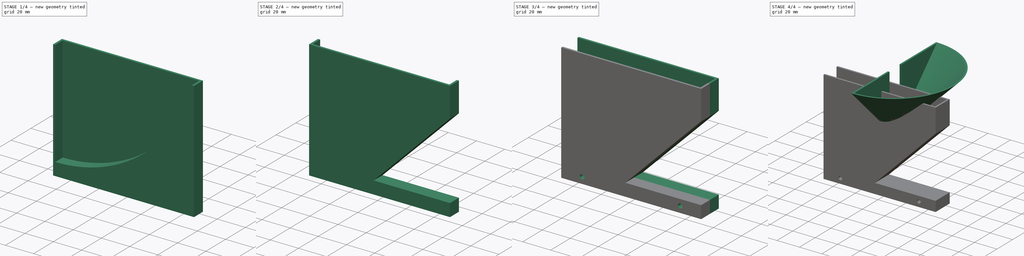
[diagram: build sequence overview — one tinted view per stage of 4, left to right]
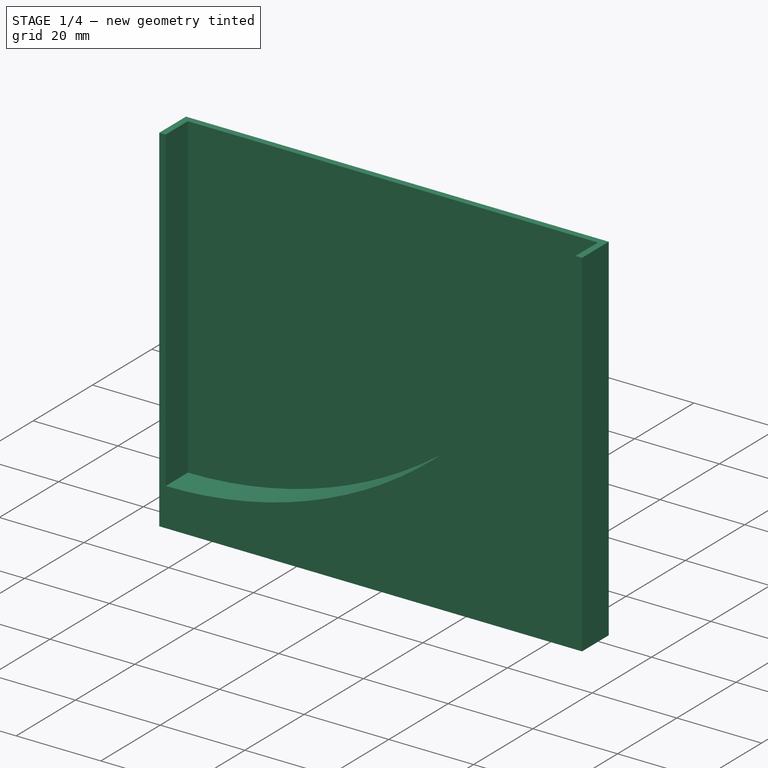
[diagram: stage 1 of 4 — iso view after this stage's code; geometry added in this stage tinted green]
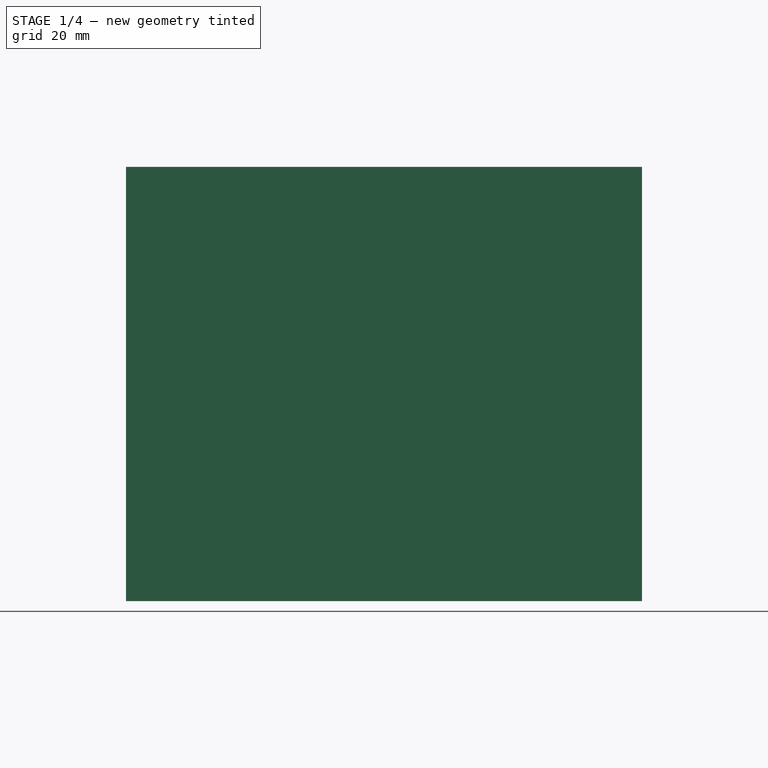
[diagram: stage 1 of 4 — front view after this stage's code; geometry added in this stage tinted green]
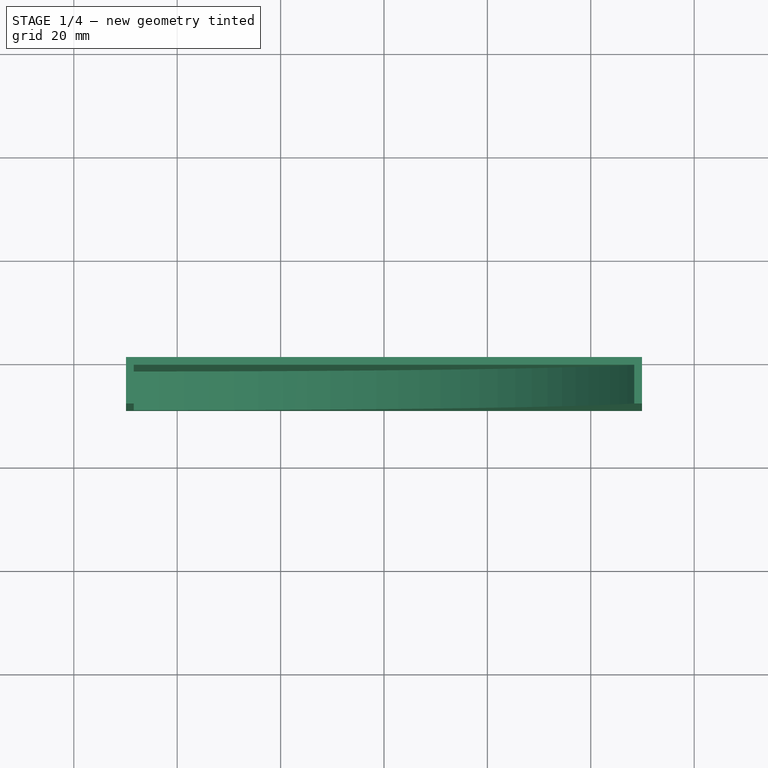
[diagram: stage 1 of 4 — top view after this stage's code; geometry added in this stage tinted green]
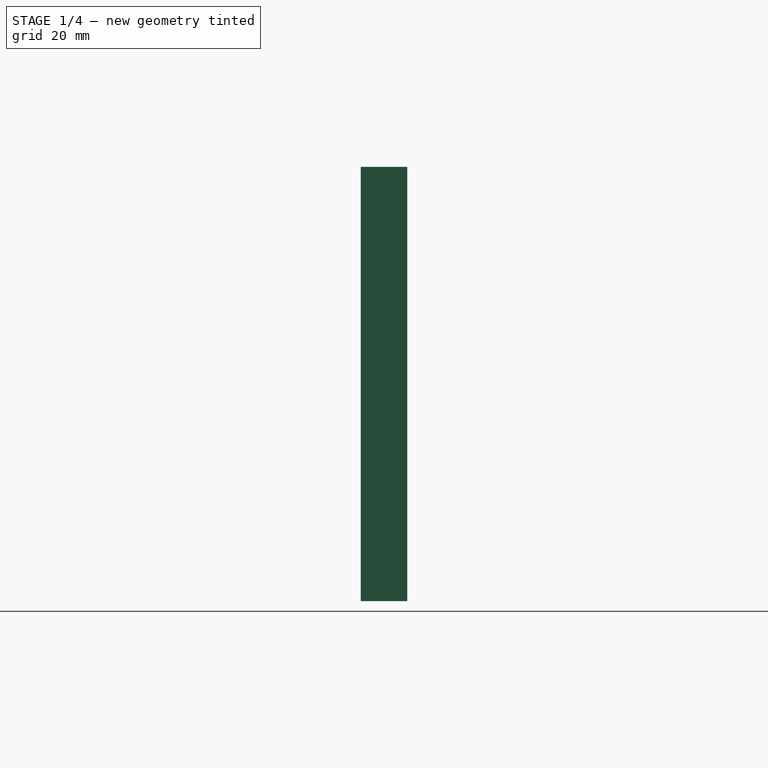
[diagram: stage 1 of 4 — right view after this stage's code; geometry added in this stage tinted green]
FCSTD DOCUMENT  (FreeCAD 0.16R5239 (Git))
Label: bowl3
License: All rights reserved
LicenseURL: http://en.wikipedia.org/wiki/All_rights_reserved
objects: Sketcher::SketchObject×7, PartDesign::Pocket×4, PartDesign::Pad×2, Part::Mirroring×1, Part::MultiFuse×1, PartDesign::Revolution×1, App::DocumentObjectGroup×1, Part::Feature×1
note: 24 computed .brp shape members not serialized (recipe doc carries the construction recipe); baked Part::Feature solids carry a one-line shape summary decoded from their .brp

FEATURE [Sketcher::SketchObject] Sketch
  Placement = pos=(0,0,0) rot=(1,0,0;1.5708rad)
  sketch-geometry (4):
    g0: LineSegment StartX=-49.9125 StartY=42 StartZ=0 EndX=49.9125 EndY=42 EndZ=0
    g1: LineSegment StartX=49.9125 StartY=42 StartZ=0 EndX=49.9125 EndY=-42 EndZ=0
    g2: LineSegment StartX=49.9125 StartY=-42 StartZ=0 EndX=-49.9125 EndY=-42 EndZ=0
    g3: LineSegment StartX=-49.9125 StartY=-42 StartZ=0 EndX=-49.9125 EndY=42 EndZ=0
  constraints (12):
    c: Coincident(g0,g1)
    c: Coincident(g1,g2)
    c: Coincident(g2,g3)
    c: Coincident(g3,g0)
    c: Horizontal(g0)
    c: Horizontal(g2)
    c: Vertical(g1)
    c: Vertical(g3)
    c: DistanceY(g3) = 84
    c: DistanceX(g0) = 99.825
    c: Symmetric(g0,g0,g-2)
    c: Symmetric(g2,g0,g-1)
FEATURE [PartDesign::Pad] Pad
  Length = 9
  Length2 = 100
  Placement = pos=(0,0,0) rot=(1,0,0;1.5708rad)
  Sketch = -> Sketch
  Type = 0
FEATURE [Sketcher::SketchObject] Sketch001
  ExternalGeometry = -> [Pad]
  Placement = pos=(0,-9,0) rot=(1,0,0;1.5708rad)
  Support = -> Pad [Face6]
  sketch-geometry (3):
    g0: LineSegment StartX=-48.4125 StartY=-33 StartZ=0 EndX=-48.4125 EndY=42 EndZ=0
    g1: LineSegment StartX=-48.4125 StartY=42 StartZ=0 EndX=48.4121 EndY=42 EndZ=0
    g2: ArcOfCircle CenterX=-48.4125 CenterY=67 CenterZ=0 NormalX=0 NormalY=0 NormalZ=1 Radius=100 StartAngle=4.71239 EndAngle=6.03051
  constraints (10):
    c: Vertical(g0)
    c: Coincident(g0,g1)
    c: Horizontal(g1)
    c: Radius(g2) = 100
    c: DistanceX(g0,g-3) = -1.5
    c: PointOnObject(g0,g-4)
    c: Coincident(g2,g1)
    c: DistanceY(g-3,g0) = 9
    c: Coincident(g2,g0)
    c: PointOnObject(g2,g0)
FEATURE [PartDesign::Pocket] Pocket
  Length = 7.5
  Placement = pos=(0,0,0) rot=(1,0,0;1.5708rad)
  Sketch = -> Sketch001
  Type = 0
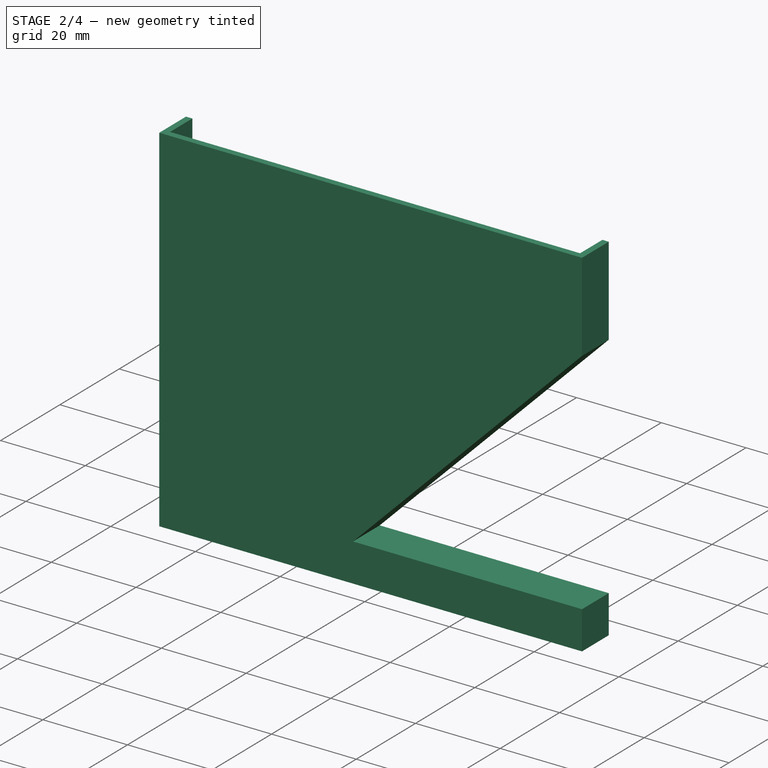
[diagram: stage 2 of 4 — iso view after this stage's code; geometry added in this stage tinted green]
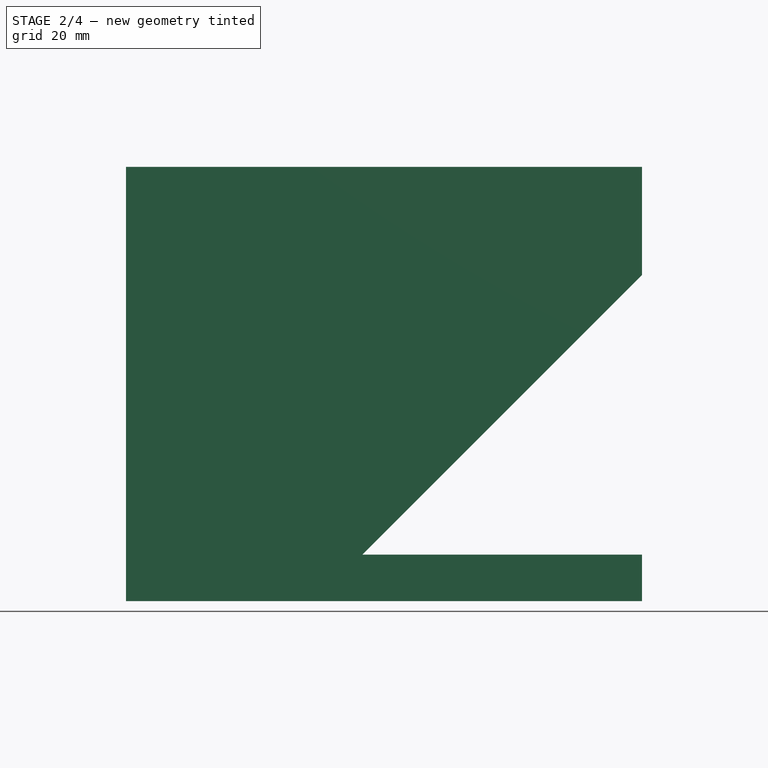
[diagram: stage 2 of 4 — front view after this stage's code; geometry added in this stage tinted green]
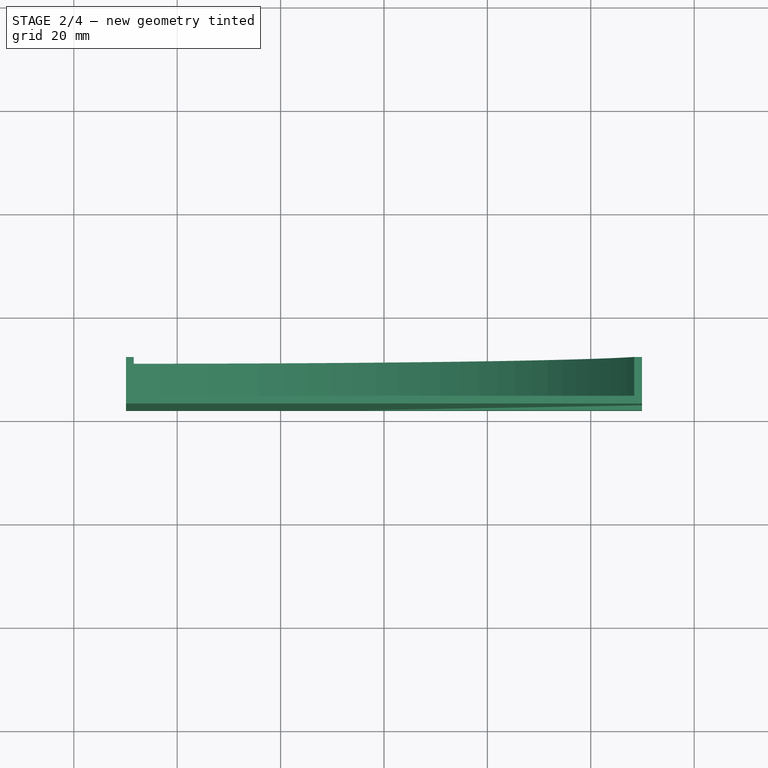
[diagram: stage 2 of 4 — top view after this stage's code; geometry added in this stage tinted green]
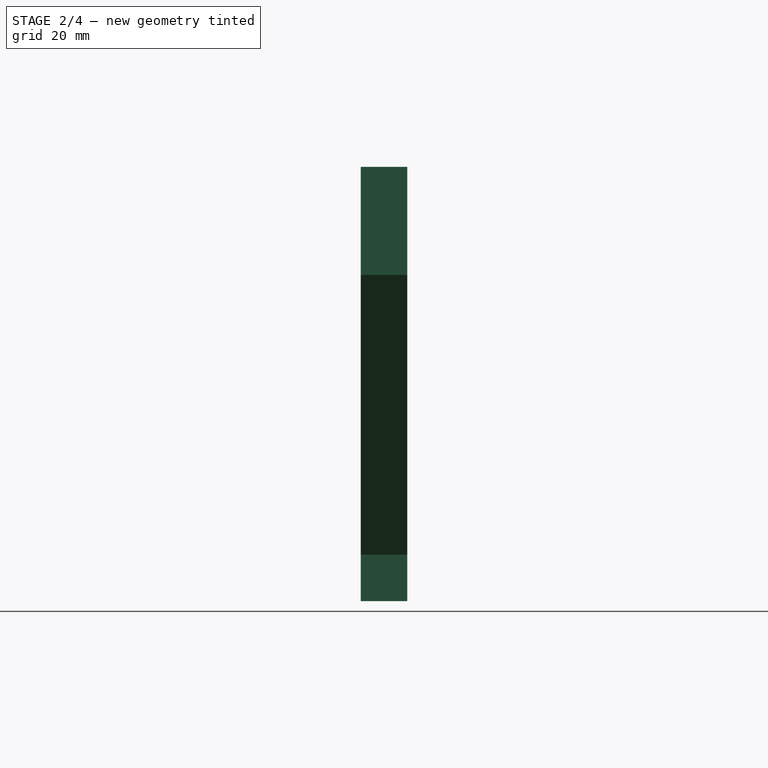
[diagram: stage 2 of 4 — right view after this stage's code; geometry added in this stage tinted green]
FEATURE [Sketcher::SketchObject] Sketch002
  ExternalGeometry = -> [Pocket]
  Placement = pos=(0,-9,0) rot=(1,0,0;1.5708rad)
  Support = -> Pocket [Face4]
  sketch-geometry (5):
    g0: LineSegment StartX=-4.16272 StartY=-33 StartZ=0 EndX=49.9125 EndY=-33 EndZ=0
    g1: LineSegment StartX=49.9125 StartY=-33 StartZ=0 EndX=49.9125 EndY=21.0752 EndZ=0
    g2: LineSegment StartX=49.9125 StartY=21.0752 StartZ=0 EndX=-4.16272 EndY=-33 EndZ=0
    g3: LineSegment [constr] StartX=-48.4125 StartY=67 StartZ=0 EndX=23.7124 EndY=-5.12489 EndZ=0
    g4: GeomPoint [constr] X=22.2982 Y=-3.71068 Z=0
  constraints (14):
    c: Horizontal(g0)
    c: Coincident(g0,g1)
    c: Vertical(g1)
    c: Coincident(g1,g2)
    c: Coincident(g2,g0)
    c: DistanceY(g0,g-3) = -9
    c: Angle(g0,g2) = 0.785398
    c: PointOnObject(g1,g-4)
    c: Coincident(g3,g-5)
    c: Angle(g-6,g3) = 0.785398
    c: PointOnObject(g3,g2)
    c: PointOnObject(g4,g-5)
    c: PointOnObject(g4,g3)
    c: Distance(g4,g3) = 2
FEATURE [PartDesign::Pocket] Pocket001
  Length = 9
  Placement = pos=(0,0,0) rot=(1,0,0;1.5708rad)
  Sketch = -> Sketch002
  Type = 0
FEATURE [Part::Mirroring] Part__Mirroring  label="Pocket001 (Mirror #1)"
  Base = (0,0,0)
  Normal = (0,1,0)
  Placement = pos=(0,-18,0) rot=(0,0,1;0rad)
  Source = -> Pocket001
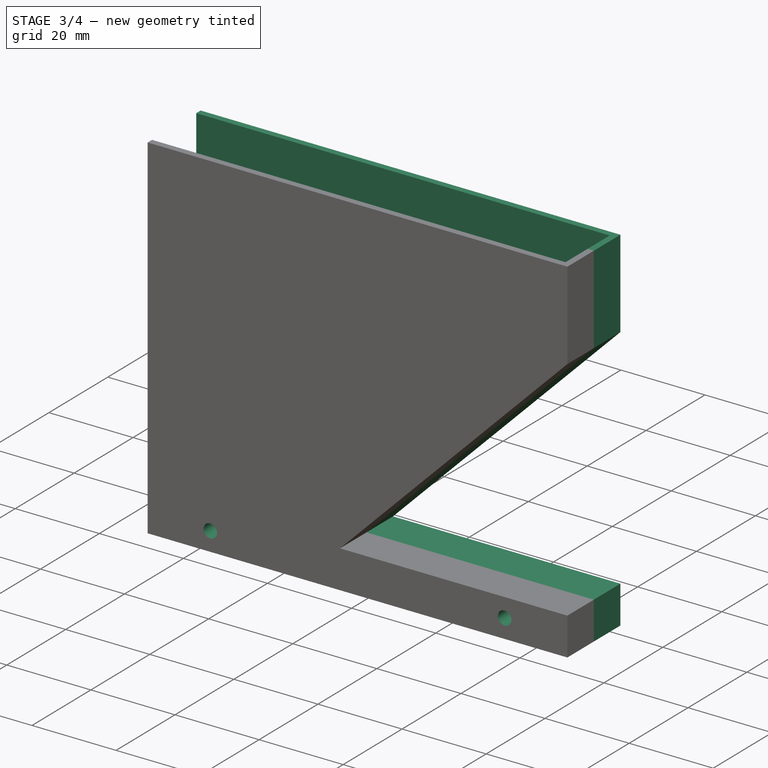
[diagram: stage 3 of 4 — iso view after this stage's code; geometry added in this stage tinted green]
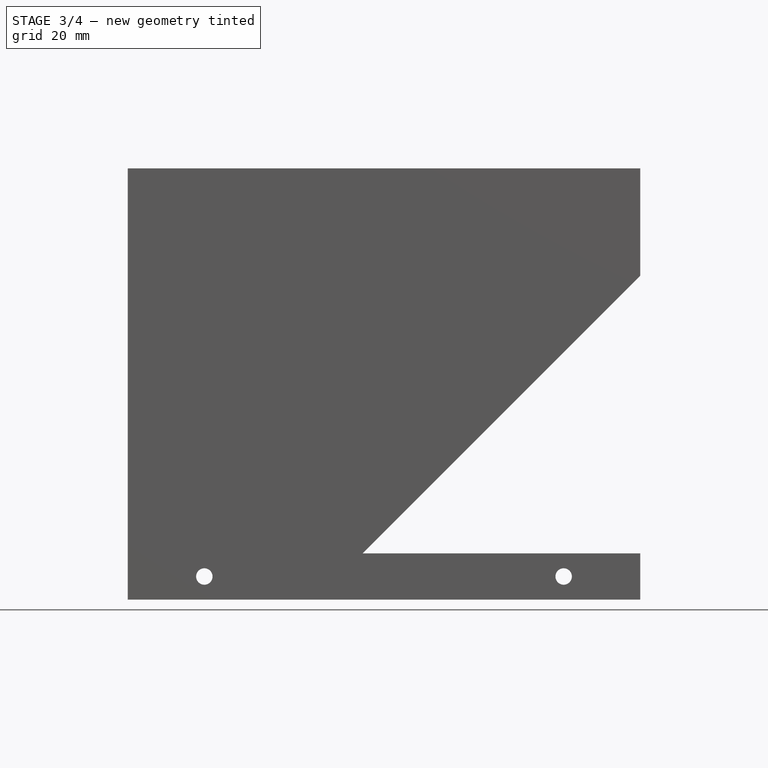
[diagram: stage 3 of 4 — front view after this stage's code; geometry added in this stage tinted green]
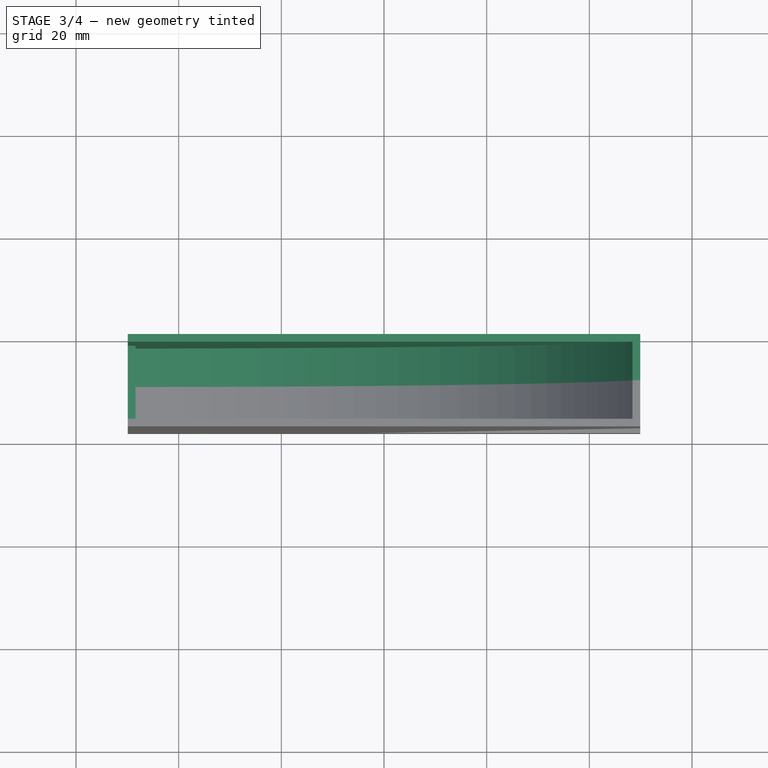
[diagram: stage 3 of 4 — top view after this stage's code; geometry added in this stage tinted green]
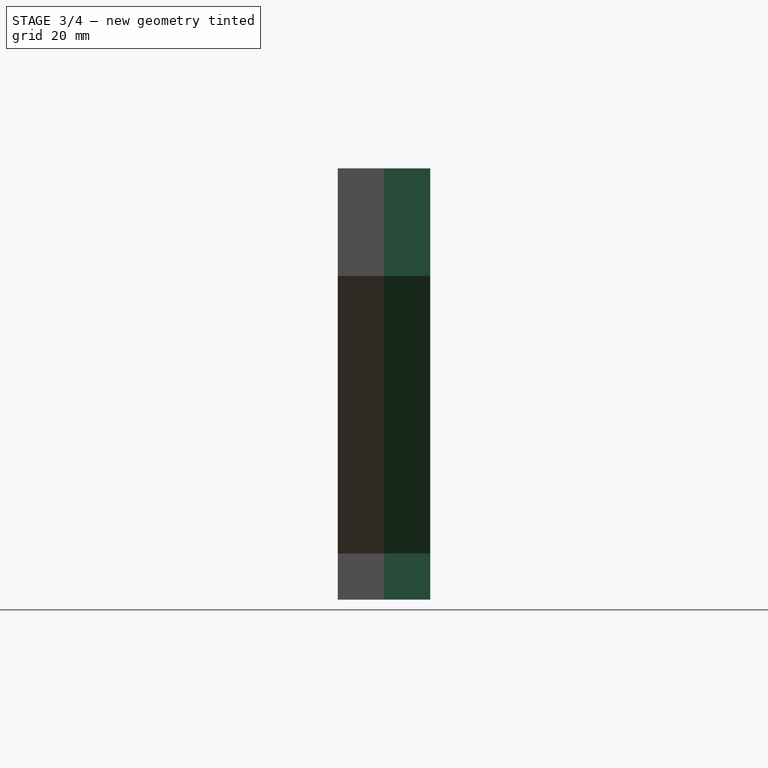
[diagram: stage 3 of 4 — right view after this stage's code; geometry added in this stage tinted green]
FEATURE [Part::MultiFuse] Fusion
  Shapes = -> [Part__Mirroring,Pocket001]
FEATURE [Sketcher::SketchObject] Sketch003
  ExternalGeometry = -> [Fusion]
  Placement = pos=(0,-18,0) rot=(1,0,0;1.5708rad)
  Support = -> Fusion [Face1]
  sketch-geometry (4):
    g0: Circle CenterX=-35 CenterY=-37.5 CenterZ=0 NormalX=0 NormalY=0 NormalZ=1 Radius=1.6
    g1: Circle CenterX=35 CenterY=-37.5 CenterZ=0 NormalX=0 NormalY=0 NormalZ=1 Radius=1.6
    g2: LineSegment [constr] StartX=35 StartY=-42 StartZ=0 EndX=35 EndY=-37.5 EndZ=0
    g3: LineSegment [constr] StartX=35 StartY=-37.5 StartZ=0 EndX=35 EndY=-33 EndZ=0
  constraints (11):
    c: Radius(g0) = 1.6
    c: Equal(g0,g1)
    c: DistanceX(g0,g1) = 70
    c: Symmetric(g0,g1,g-2)
    c: PointOnObject(g2,g-4)
    c: Coincident(g2,g1)
    c: Vertical(g2)
    c: Coincident(g2,g3)
    c: PointOnObject(g3,g-3)
    c: Equal(g3,g2)
    c: Vertical(g3)
FEATURE [PartDesign::Pocket] Pocket002
  Length = 20
  Sketch = -> Sketch003
  Type = 0
FEATURE [App::DocumentObjectGroup] Group
  Group = -> [Revolution,Pad001]
FEATURE [Sketcher::SketchObject] Sketch006
  ExternalGeometry = -> [Pocket002]
  Placement = pos=(-49.9125,0,0) rot=(0.57735,-0.57735,-0.57735;2.0944rad)
  Support = -> Pocket002 [Face15]
  sketch-geometry (5):
    g0: LineSegment StartX=1.5 StartY=42 StartZ=0 EndX=16.5 EndY=42 EndZ=0
    g1: LineSegment StartX=16.5 StartY=42 StartZ=0 EndX=16.5 EndY=-3 EndZ=0
    g2: LineSegment StartX=16.5 StartY=-3 StartZ=0 EndX=1.5 EndY=-3 EndZ=0
    g3: LineSegment StartX=1.5 StartY=-3 StartZ=0 EndX=1.5 EndY=42 EndZ=0
    g4: LineSegment [constr] StartX=9 StartY=42 StartZ=0 EndX=9 EndY=-3 EndZ=0
  constraints (15):
    c: Coincident(g1,g2)
    c: Coincident(g2,g3)
    c: Coincident(g3,g0)
    c: Horizontal(g0)
    c: Horizontal(g2)
    c: Vertical(g1)
    c: Vertical(g3)
    c: DistanceX(g0,g-3) = 1.5
    c: Coincident(g1,g0)
    c: PointOnObject(g0,g-3)
    c: Coincident(g4,g-3)
    c: PointOnObject(g4,g2)
    c: Vertical(g4)
    c: Symmetric(g0,g0,g4)
    c: DistanceY(g1) = -45
FEATURE [PartDesign::Pocket] Pocket003
  Length = 5
  Sketch = -> Sketch006
  Type = 0
FEATURE [Part::Feature] Pad001001  label="Pad002"
  Placement = pos=(-48.4125,-9,-12) rot=(-0.57735,0.57735,0.57735;4.18879rad)
  shape: bbox 54 x 108 x 54 mm, 23 faces (baked)
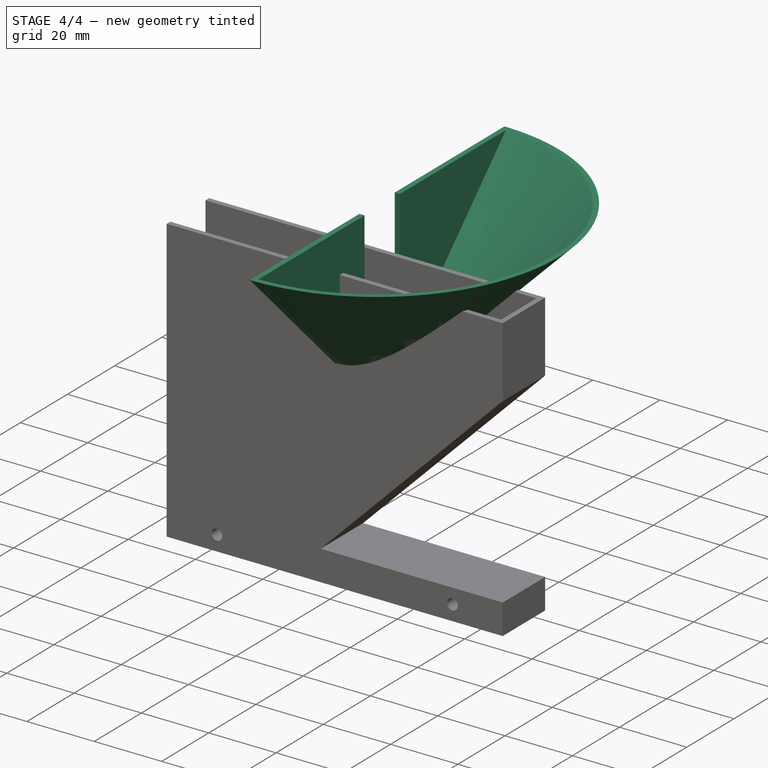
[diagram: stage 4 of 4 — iso view after this stage's code; geometry added in this stage tinted green]
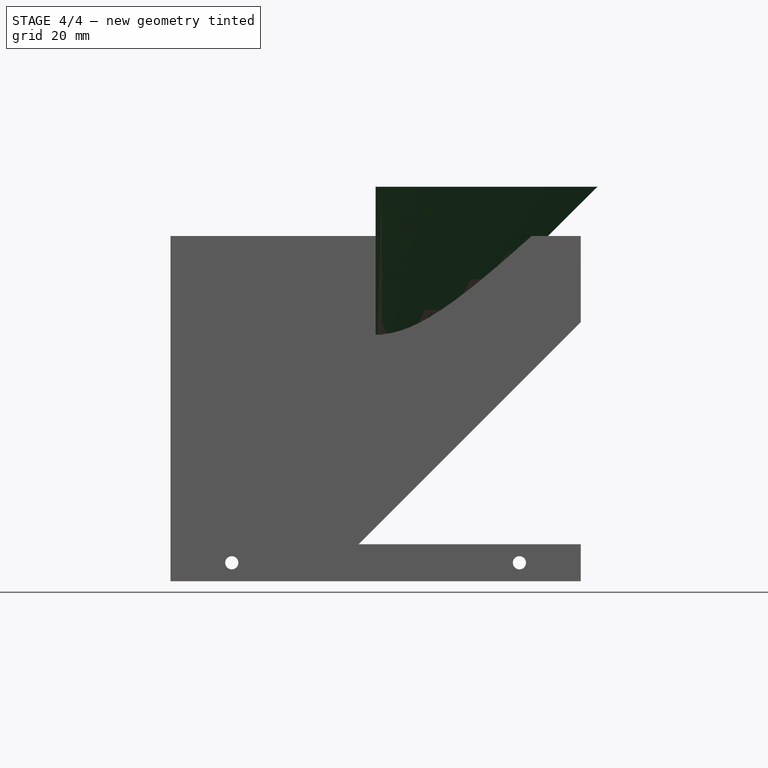
[diagram: stage 4 of 4 — front view after this stage's code; geometry added in this stage tinted green]
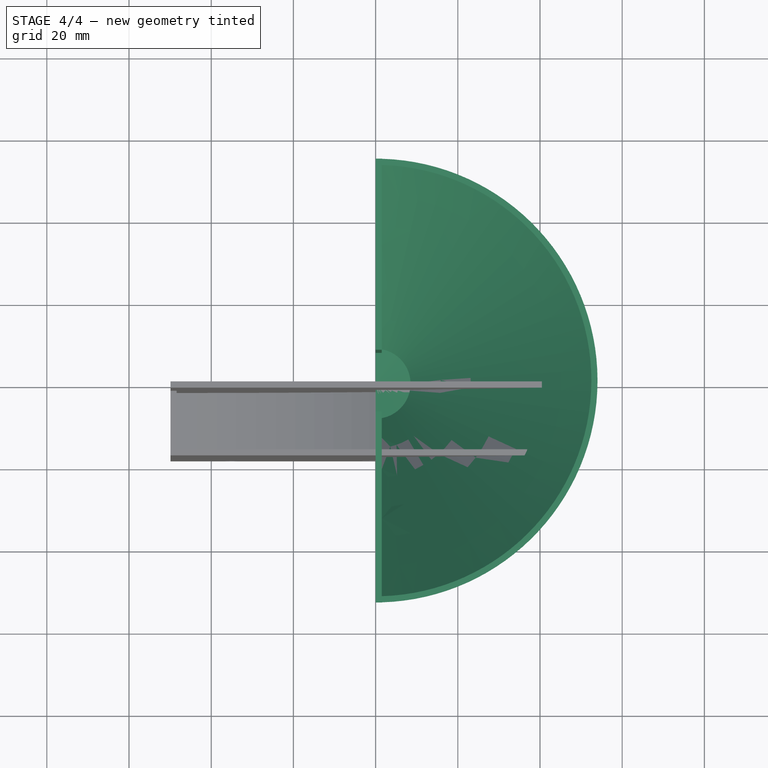
[diagram: stage 4 of 4 — top view after this stage's code; geometry added in this stage tinted green]
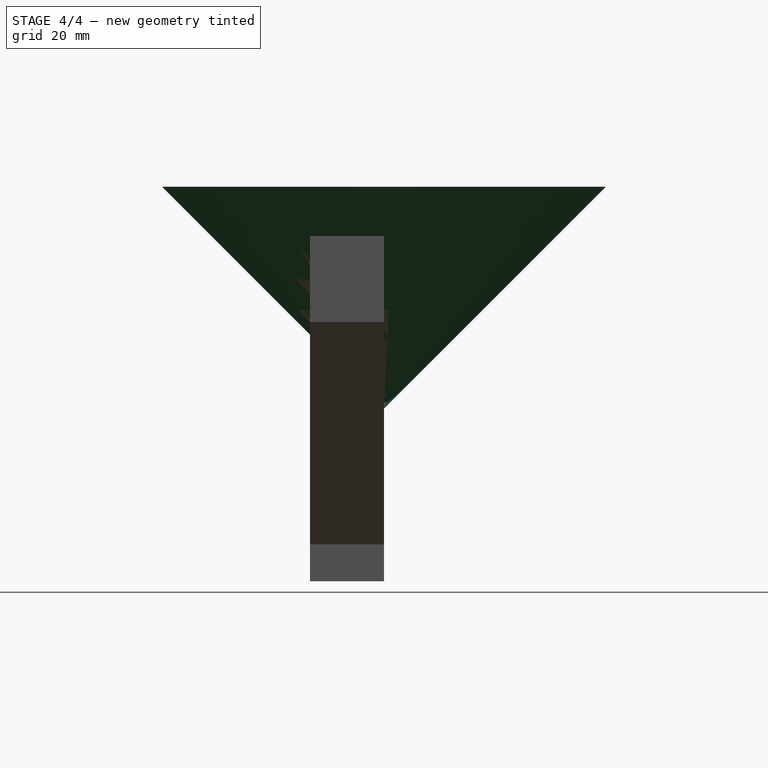
[diagram: stage 4 of 4 — right view after this stage's code; geometry added in this stage tinted green]
FEATURE [Sketcher::SketchObject] Sketch004
  Placement = pos=(0,0,0) rot=(0.57735,0.57735,0.57735;2.0944rad)
  sketch-geometry (7):
    g0: LineSegment StartX=0 StartY=0 StartZ=0 EndX=54 EndY=54 EndZ=0
    g1: LineSegment StartX=52.5 StartY=54 StartZ=0 EndX=8.5 EndY=10 EndZ=0
    g2: LineSegment StartX=0 StartY=9 StartZ=0 EndX=0 EndY=0 EndZ=0
    g3: LineSegment StartX=52.5 StartY=54 StartZ=0 EndX=54 EndY=54 EndZ=0
    g4: GeomPoint [constr] X=9 Y=9 Z=0
    g5: LineSegment [constr] StartX=9 StartY=9 StartZ=0 EndX=0 EndY=9 EndZ=0
    g6: LineSegment StartX=8.5 StartY=10 StartZ=0 EndX=0 EndY=9 EndZ=0
  constraints (20):
    c: Vertical(g2)
    c: Parallel(g0,g1)
    c: Coincident(g3,g1)
    c: Coincident(g3,g0)
    c: Horizontal(g3)
    c: Angle(g0,g-2) = 0.785398
    c: Coincident(g0,g-1)
    c: Coincident(g-1,g2)
    c: PointOnObject(g4,g0)
    c: DistanceY(g-1,g4) = 9
    c: DistanceY(g4,g1) = 45
    c: Coincident(g5,g4)
    c: PointOnObject(g5,g-2)
    c: Horizontal(g5)
    c: DistanceY(g1,g4) = -1
    c: Coincident(g6,g1)
    c: PointOnObject(g6,g-2)
    c: Coincident(g2,g6)
    c: Coincident(g2,g5)
    c: DistanceX(g3) = 1.5
FEATURE [PartDesign::Revolution] Revolution
  Angle = 180
  Axis = (0,0,1)
  Base = (0,0,0)
  Placement = pos=(0,0,0) rot=(0.57735,0.57735,0.57735;2.0944rad)
  ReferenceAxis = -> Sketch004 [V_Axis]
  Reversed = true
  Sketch = -> Sketch004
FEATURE [Sketcher::SketchObject] Sketch005
  ExternalGeometry = -> [Revolution]
  Placement = pos=(0,0,0) rot=(-0.57735,-0.57735,0.57735;2.0944rad)
  Support = -> Revolution [Face6]
  sketch-geometry (7):
    g0: LineSegment StartX=-54 StartY=-54 StartZ=0 EndX=0 EndY=0 EndZ=0
    g1: LineSegment StartX=0 StartY=0 StartZ=0 EndX=54 EndY=-54 EndZ=0
    g2: LineSegment StartX=-54 StartY=-54 StartZ=0 EndX=-7.5 EndY=-54 EndZ=0
    g3: LineSegment StartX=-7.5 StartY=-54 StartZ=0 EndX=-7.5 EndY=-9 EndZ=0
    g4: LineSegment StartX=-7.5 StartY=-9 StartZ=0 EndX=7.5 EndY=-9 EndZ=0
    g5: LineSegment StartX=7.5 StartY=-9 StartZ=0 EndX=7.5 EndY=-54 EndZ=0
    g6: LineSegment StartX=7.5 StartY=-54 StartZ=0 EndX=54 EndY=-54 EndZ=0
  constraints (18):
    c: Coincident(g0,g1)
    c: Coincident(g0,g-1)
    c: Coincident(g1,g-4)
    c: Coincident(g0,g-3)
    c: Coincident(g0,g2)
    c: Horizontal(g2)
    c: Coincident(g2,g3)
    c: Vertical(g3)
    c: Coincident(g3,g4)
    c: Horizontal(g4)
    c: Coincident(g4,g5)
    c: Vertical(g5)
    c: Coincident(g5,g6)
    c: Coincident(g6,g1)
    c: Horizontal(g6)
    c: DistanceX(g4) = 15
    c: Symmetric(g2,g5,g-2)
    c: DistanceY(g5) = -45
FEATURE [PartDesign::Pad] Pad001
  Length = 1.5
  Length2 = 100
  Placement = pos=(0,0,0) rot=(0.57735,0.57735,0.57735;2.0944rad)
  Reversed = true
  Sketch = -> Sketch005
  Type = 0
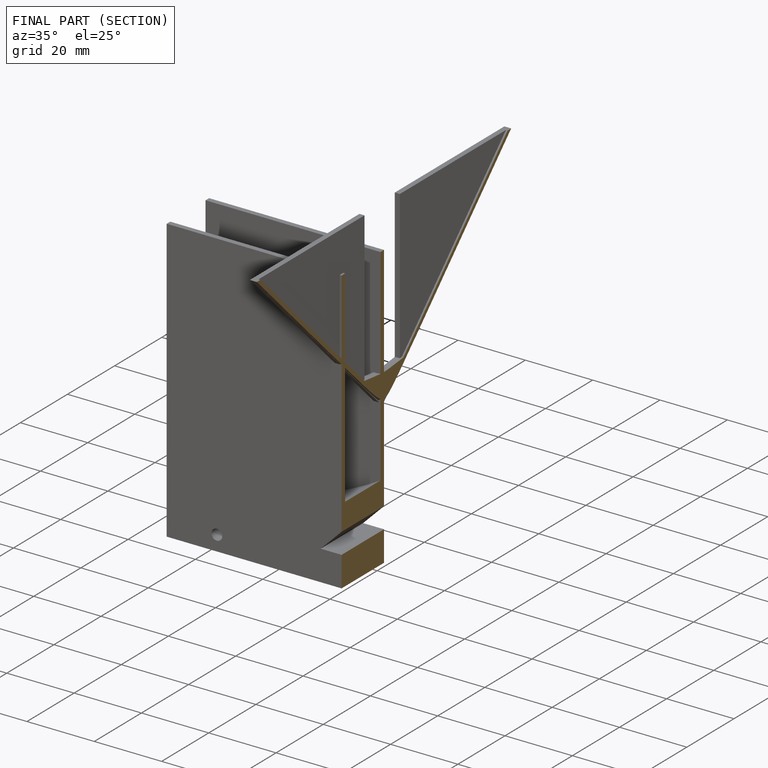
[diagram: finished part — half-section view (interior)]
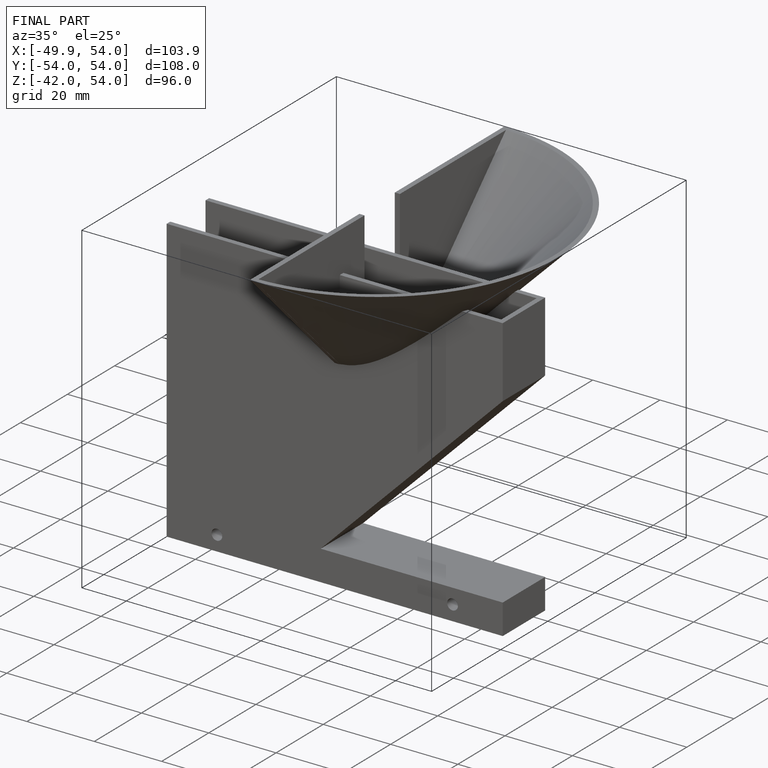
[diagram: finished part — iso view with bounding-box wireframe]
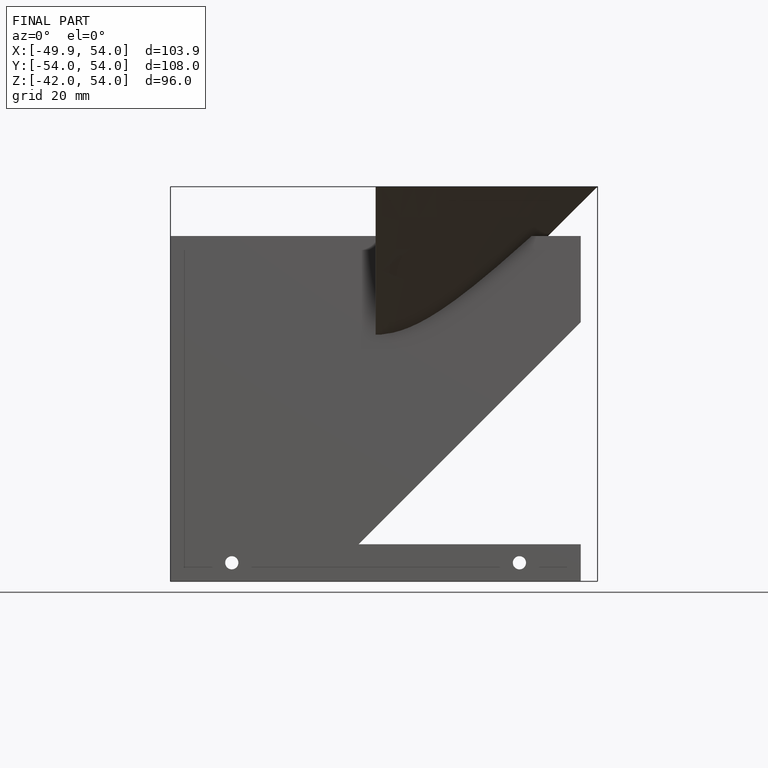
[diagram: finished part — front view with bounding-box wireframe]
